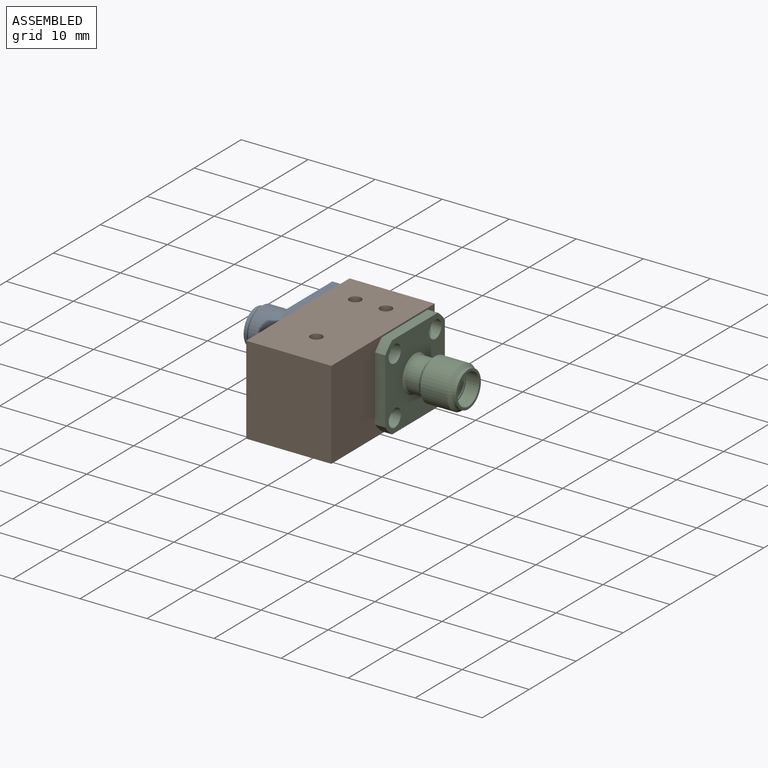
[diagram: assembled view]
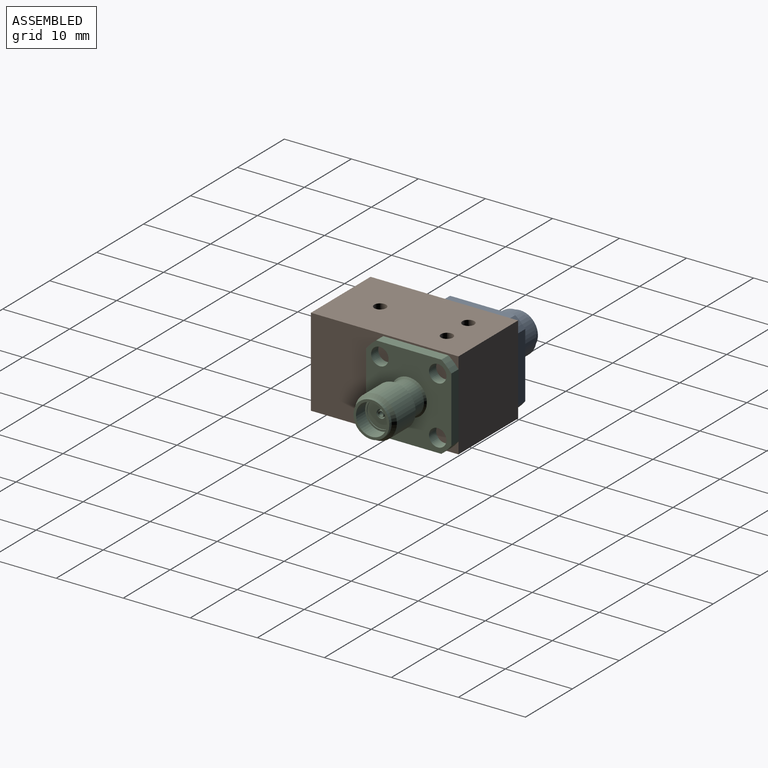
[diagram: assembled view, second angle]
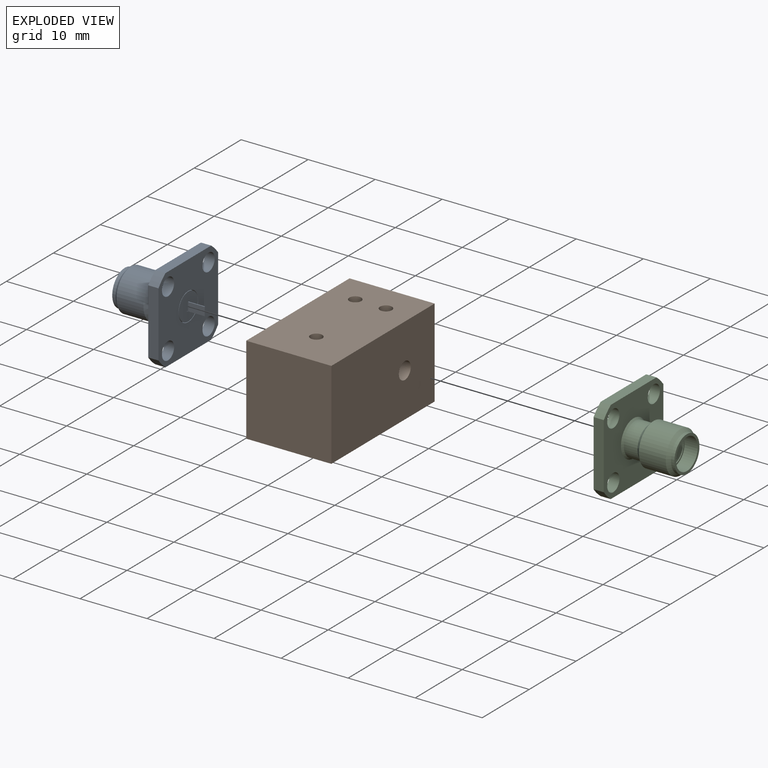
[diagram: exploded view]
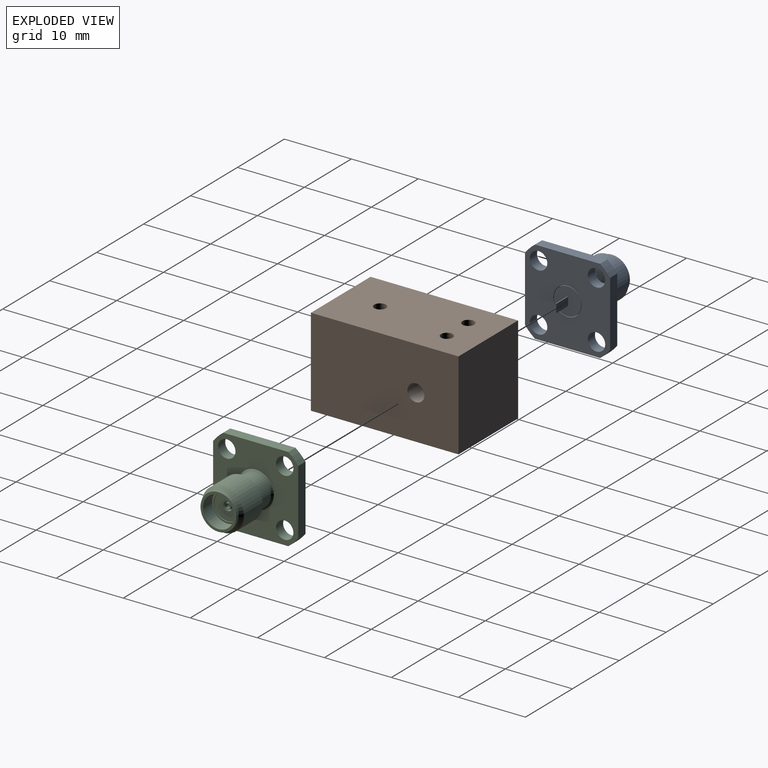
[diagram: exploded view, second angle]
ASSEMBLY  parts=3 mates=6
PART A: 80 faces, bbox 12x12.7x12.7 mm
  f0: plane 0.7x0.2mm, normal (0.04,-0.5,-0.87), area 0.1mm2, adj f1,f75,f76,f77,f79
  f1: cone r=0.45mm half-angle=5.4deg, axis (1,0,0), area 0.7mm2, adj f0,f75,f78,f79
  f2: cone r=0.3mm half-angle=5.4deg, axis (1,0,0), area 0.3mm2, adj f3,f4,f6,f75
  f3: cone r=0.3mm half-angle=24.6deg, axis (-1,0,0), area 0.1mm2, adj f2,f4,f5,f6
  f4: plane 0.7x0.18mm, normal (0.04,0.5,0.87), area 0.1mm2, adj f2,f3,f5,f7,f75
  f5: cone r=0.38mm half-angle=84.6deg, axis (-1,0,0), area 0.1mm2, adj f3,f4,f6,f7
  f6: plane 0.7x0.18mm, normal (0.04,-0.5,0.87), area 0.1mm2, adj f2,f3,f5,f7,f75
  f7: cone r=0.45mm half-angle=5.4deg, axis (1,0,0), area 0.7mm2, adj f4,f5,f6,f75
  f8: cone r=0.3mm half-angle=5.4deg, axis (1,0,0), area 0.3mm2, adj f9,f10,f12,f75
  f9: cone r=0.3mm half-angle=24.6deg, axis (-1,0,0), area 0.1mm2, adj f8,f10,f11,f12
  f10: plane 0.7x0.2mm, normal (0.04,0.5,-0.87), area 0.1mm2, adj f8,f9,f11,f13,f75
  f11: cone r=0.38mm half-angle=84.6deg, axis (-1,0,0), area 0.1mm2, adj f9,f10,f12,f13
  f12: plane 0.7x0.21mm, normal (0.04,1,0), area 0.1mm2, adj f8,f9,f11,f13,f75
  f13: cone r=0.45mm half-angle=5.4deg, axis (1,0,0), area 0.7mm2, adj f10,f11,f12,f75
  f14: cylinder r=0.64mm len=1.29mm, axis (-1,0,0), area 1.3mm2, adj f73,f74,f75
  f15: cylinder r=2.03mm len=4.06mm, axis (-1,0,0), area 4.1mm2, adj f71,f72,f73
  f16: cylinder r=2.05mm len=4.1mm, axis (1,0,0), area 4.8mm2, adj f17,f69,f70,f71
  f17: cone r=2.05mm half-angle=85deg, axis (1,0,0), area 1.8mm2, adj f16,f18,f69,f70
  f18: cylinder r=2.31mm len=4.61mm, axis (1,0,0), area 14.1mm2, adj f17,f67,f68
  f19: cylinder r=2.45mm len=4.9mm, axis (1,0,0), area 15.8mm2, adj f20,f58,f63
  f20: cone r=2.45mm half-angle=45deg, axis (1,0,0), area 2.9mm2, adj f19,f56,f57
  f21: cylinder r=1.3mm len=2.6mm, axis (-1,0,0), area 6.2mm2, adj f22,f53,f56
  f22: cylinder r=1.3mm len=2.6mm, axis (-1,0,0), area 6.2mm2, adj f21,f53,f56
  f23: cylinder r=1.3mm len=2.6mm, axis (-1,0,0), area 6.2mm2, adj f24,f53,f56
  f24: cylinder r=1.3mm len=2.6mm, axis (-1,0,0), area 6.2mm2, adj f23,f53,f56
  f25: cylinder r=1.3mm len=2.6mm, axis (-1,0,0), area 6.2mm2, adj f26,f53,f56
  f26: cylinder r=1.3mm len=2.6mm, axis (-1,0,0), area 6.2mm2, adj f25,f53,f56
  f27: cylinder r=1.3mm len=2.6mm, axis (-1,0,0), area 6.2mm2, adj f28,f53,f56
  f28: cylinder r=1.3mm len=2.6mm, axis (-1,0,0), area 6.2mm2, adj f27,f53,f56
  f29: plane 1.27x0.57mm, normal (1,0,0), area 0.6mm2, adj f30,f35
  f30: plane 2.53x1.27mm, normal (0,1,0), area 3.2mm2, adj f29,f33,f35
  f31: plane 1.27x0.57mm, normal (1,0,0), area 0.6mm2, adj f32,f34
  f32: plane 2.53x1.27mm, normal (0,-1,0), area 3.2mm2, adj f31,f33,f34
  f33: plane 1.28x0.13mm, normal (1,0,0), area 0.2mm2, adj f30,f32,f34,f35
  f34: cylinder r=0.64mm len=2.76mm, axis (1,0,0), area 0.8mm2, adj f31,f32,f33,f35,f37
  f35: cylinder r=0.64mm len=2.76mm, axis (1,0,0), area 0.8mm2, adj f29,f30,f33,f34,f37
  f36: cylinder r=0.64mm len=1.29mm, axis (-1,0,0), area 0.5mm2, adj f37,f38,f39
  f37: plane 1.29x1.29mm, normal (1,0,0), area 0mm2, adj f34,f35,f36,f38
  f38: cylinder r=0.64mm len=1.29mm, axis (-1,0,0), area 0.5mm2, adj f36,f37,f39
  f39: plane 4.06x4.06mm, normal (1,0,0), area 11.6mm2, adj f36,f38,f40,f41
  f40: cylinder r=2.03mm len=4.06mm, axis (-1,0,0), area 1.7mm2, adj f39,f41,f43
  f41: cylinder r=2.03mm len=4.06mm, axis (-1,0,0), area 1.7mm2, adj f39,f40,f43
  f42: cylinder r=2.05mm len=4.1mm, axis (1,0,0), area 0.5mm2, adj f43,f44,f46
  f43: plane 4.1x4.1mm, normal (1,0,0), area 0.3mm2, adj f40,f41,f42,f44
  f44: cylinder r=2.05mm len=4.1mm, axis (1,0,0), area 0.5mm2, adj f42,f43,f45
  f45: cone r=2.05mm half-angle=15deg, axis (1,0,0), area 1.3mm2, adj f44,f46,f53
  f46: cone r=2.05mm half-angle=15deg, axis (1,0,0), area 1.3mm2, adj f42,f45,f53
  f47: plane 9.73x1.53mm, normal (0,-1,0), area 14.8mm2, adj f48,f53,f55,f56
  f48: cylinder r=8mm len=1.53mm, axis (1,0,0), area 3.2mm2, adj f47,f49,f53,f56
  f49: plane 9.73x1.53mm, normal (0,0,1), area 14.8mm2, adj f48,f50,f53,f56
  f50: cylinder r=8mm len=1.53mm, axis (1,0,0), area 3.2mm2, adj f49,f51,f53,f56
  f51: plane 9.73x1.53mm, normal (0,1,0), area 14.8mm2, adj f50,f52,f53,f56
  f52: cylinder r=8mm len=1.53mm, axis (1,0,0), area 3.2mm2, adj f51,f53,f54,f56
  f53: plane 12.7x12.7mm, normal (1,0,0), area 122.2mm2, adj f21,f22,f23,f24,f25,f26,f27,f28
  f54: plane 9.73x1.53mm, normal (0,0,-1), area 14.8mm2, adj f52,f53,f55,f56
  f55: cylinder r=8mm len=1.53mm, axis (1,0,0), area 3.2mm2, adj f47,f53,f54,f56
  f56: plane 12.7x12.7mm, normal (-1,0,0), area 113.1mm2, adj f20,f21,f22,f23,f24,f25,f26,f27
  f57: cone r=2.45mm half-angle=45deg, axis (1,0,0), area 2.9mm2, adj f20,f56,f58
  f58: cylinder r=2.45mm len=4.9mm, axis (1,0,0), area 15.8mm2, adj f19,f57,f62
  f59: cylinder r=2.67mm len=5.35mm, axis (1,0,0), area 4.2mm2, adj f60,f66,f67
  f60: cone r=2.67mm half-angle=45deg, axis (1,0,0), area 5.9mm2, adj f59,f61,f65
  f61: cylinder r=3.13mm len=6.26mm, axis (1,0,0), area 39.5mm2, adj f60,f62,f64
  f62: cone r=2.45mm half-angle=45deg, axis (-1,0,0), area 8.4mm2, adj f58,f61,f63
  f63: cone r=2.45mm half-angle=45deg, axis (-1,0,0), area 8.4mm2, adj f19,f62,f64
  f64: cylinder r=3.13mm len=6.26mm, axis (1,0,0), area 39.5mm2, adj f61,f63,f65
  f65: cone r=2.67mm half-angle=45deg, axis (1,0,0), area 5.9mm2, adj f60,f64,f66
  f66: cylinder r=2.67mm len=5.35mm, axis (1,0,0), area 4.2mm2, adj f59,f65,f67
  f67: plane 5.35x5.35mm, normal (-1,0,0), area 5.8mm2, adj f18,f59,f66,f68
  f68: cylinder r=2.31mm len=4.61mm, axis (1,0,0), area 14.1mm2, adj f18,f67,f69
  f69: cone r=2.05mm half-angle=85deg, axis (1,0,0), area 1.8mm2, adj f16,f17,f68,f70
  f70: cylinder r=2.05mm len=4.1mm, axis (1,0,0), area 4.8mm2, adj f16,f17,f69,f71
  f71: plane 4.1x4.1mm, normal (-1,0,0), area 0.3mm2, adj f15,f16,f70,f72
  f72: cylinder r=2.03mm len=4.06mm, axis (-1,0,0), area 4.1mm2, adj f15,f71,f73
  f73: plane 4.06x4.06mm, normal (-1,0,0), area 11.6mm2, adj f14,f15,f72,f74
  f74: cylinder r=0.64mm len=1.29mm, axis (-1,0,0), area 1.3mm2, adj f14,f73,f75
  f75: plane 1.29x1.29mm, normal (-1,0,0), area 0.9mm2, adj f0,f1,f2,f4,f6,f7,f8,f10
  f76: cone r=0.3mm half-angle=5.4deg, axis (1,0,0), area 0.3mm2, adj f0,f75,f77,f78
  f77: cone r=0.3mm half-angle=24.6deg, axis (-1,0,0), area 0.1mm2, adj f0,f76,f78,f79
  f78: plane 0.7x0.21mm, normal (0.04,-1,0), area 0.1mm2, adj f1,f75,f76,f77,f79
  f79: cone r=0.38mm half-angle=84.6deg, axis (-1,0,0), area 0.1mm2, adj f0,f1,f77,f78
PART B: 19 faces, bbox 12.7x22x13.2 mm
  f0: plane 22.01x13.21mm, normal (-1,0,0), area 285.6mm2, adj f1,f3,f4,f5,f6
  f1: plane 13.21x12.7mm, normal (0,-1,0), area 167.7mm2, adj f0,f2,f4,f5
  f2: plane 22.01x13.21mm, normal (1,0,0), area 285.6mm2, adj f1,f3,f4,f5,f6
  f3: plane 13.21x12.7mm, normal (0,1,0), area 167.7mm2, adj f0,f2,f4,f5
  f4: plane 22.01x12.7mm, normal (0,0,1), area 272.1mm2, adj f0,f1,f2,f3,f7,f9,f11
  f5: plane 22.01x12.7mm, normal (0,0,-1), area 272.1mm2, adj f0,f1,f2,f3,f13,f15,f17
  f6: cylinder r=1.27mm len=12.7mm, axis (1,0,0), area 101.3mm2, adj f0,f2
  f7: cylinder r=0.89mm len=3.81mm, axis (0,0,1), area 21.3mm2, adj f4,f8
  f8: cone r=0mm half-angle=59deg, axis (0,0,1), area 2.9mm2, adj f7
  f9: cylinder r=0.89mm len=3.81mm, axis (0,0,1), area 21.3mm2, adj f4,f10
  f10: cone r=0mm half-angle=59deg, axis (0,0,1), area 2.9mm2, adj f9
  f11: cylinder r=0.89mm len=3.81mm, axis (0,0,1), area 21.3mm2, adj f4,f12
  f12: cone r=0mm half-angle=59deg, axis (0,0,1), area 2.9mm2, adj f11
  f13: cylinder r=0.89mm len=3.81mm, axis (0,0,-1), area 21.3mm2, adj f5,f14
  f14: cone r=0mm half-angle=59deg, axis (0,0,-1), area 2.9mm2, adj f13
  f15: cylinder r=0.89mm len=3.81mm, axis (0,0,-1), area 21.3mm2, adj f5,f16
  f16: cone r=0mm half-angle=59deg, axis (0,0,-1), area 2.9mm2, adj f15
  f17: cylinder r=0.89mm len=3.81mm, axis (0,0,-1), area 21.3mm2, adj f5,f18
  f18: cone r=0mm half-angle=59deg, axis (0,0,-1), area 2.9mm2, adj f17
PART C: same geometry as A
PLACE A t=(-16.7,4.13,1.64)mm
PLACE B t=(-2.8,-0.52,1.64)mm fixed
PLACE C rot(axis=(0,1,0),180deg) t=(11.09,4.13,1.64)mm
MATE planar B.f6 <-> A.f1  axis (-1,0,0) through (-9.15,4.13,1.64)mm
MATE planar B.f6 <-> C.f1  axis (1,0,0) through (3.55,4.13,1.64)mm
MATE parallel B.f3 <-> A.f51  axis (0,1,0) through (-9.15,10.48,1.64)mm
MATE parallel C.f51 <-> B.f3  axis (0,1,0) through (3.55,10.48,1.64)mm
MATE cylindrical C.f1 <-> B.f6  axis (-1,0,0) through (3.55,4.13,1.64)mm
MATE cylindrical B.f6 <-> A.f1  axis (-1,0,0) through (-9.15,4.13,1.64)mm
